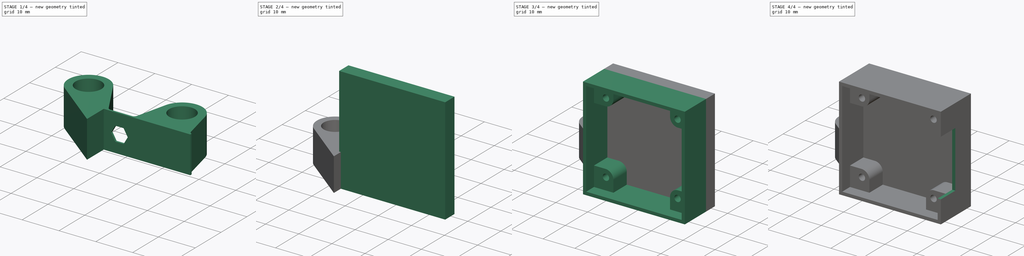
[diagram: build sequence overview — one tinted view per stage of 4, left to right]
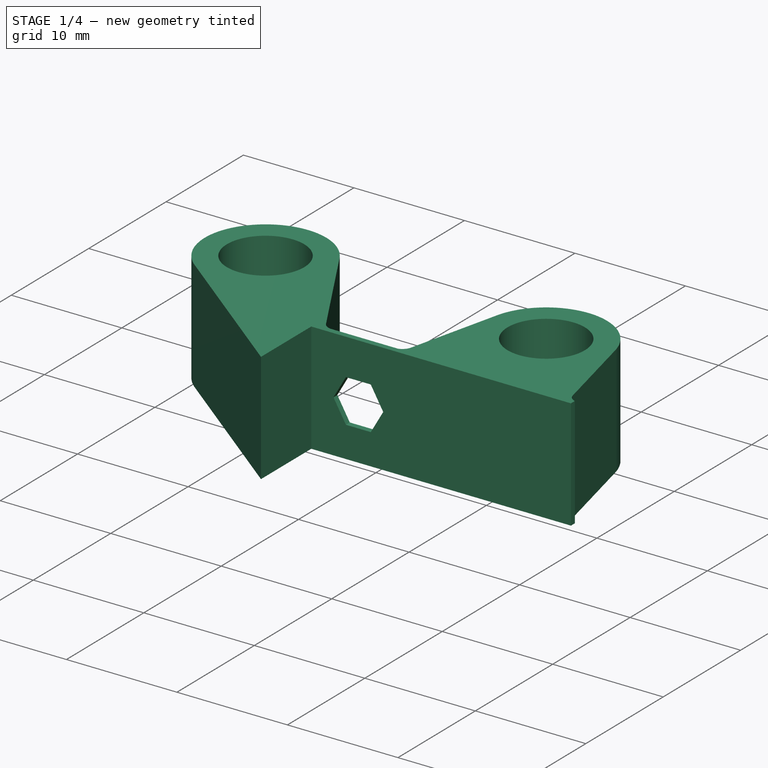
[diagram: stage 1 of 4 — iso view after this stage's code; geometry added in this stage tinted green]
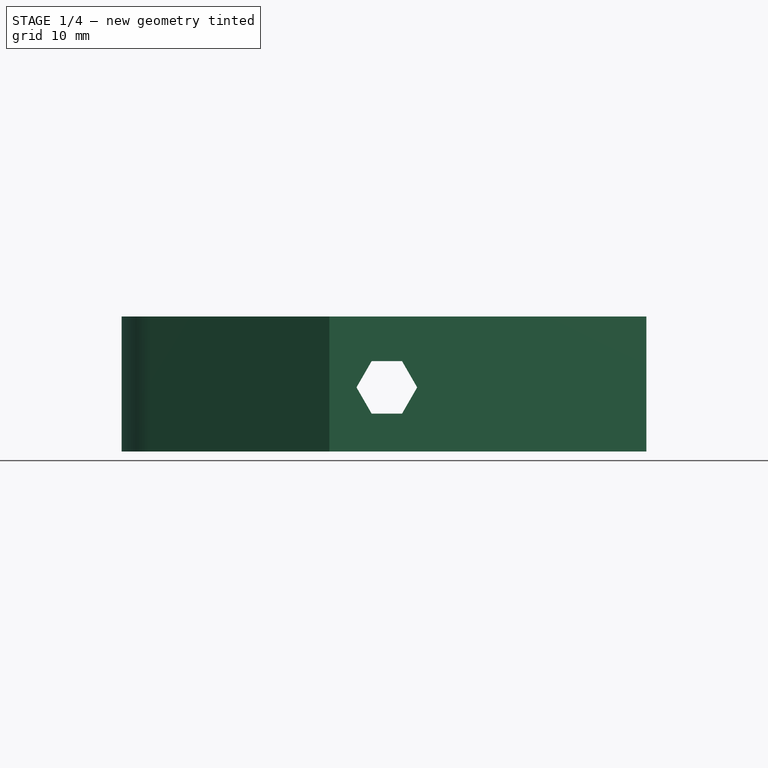
[diagram: stage 1 of 4 — front view after this stage's code; geometry added in this stage tinted green]
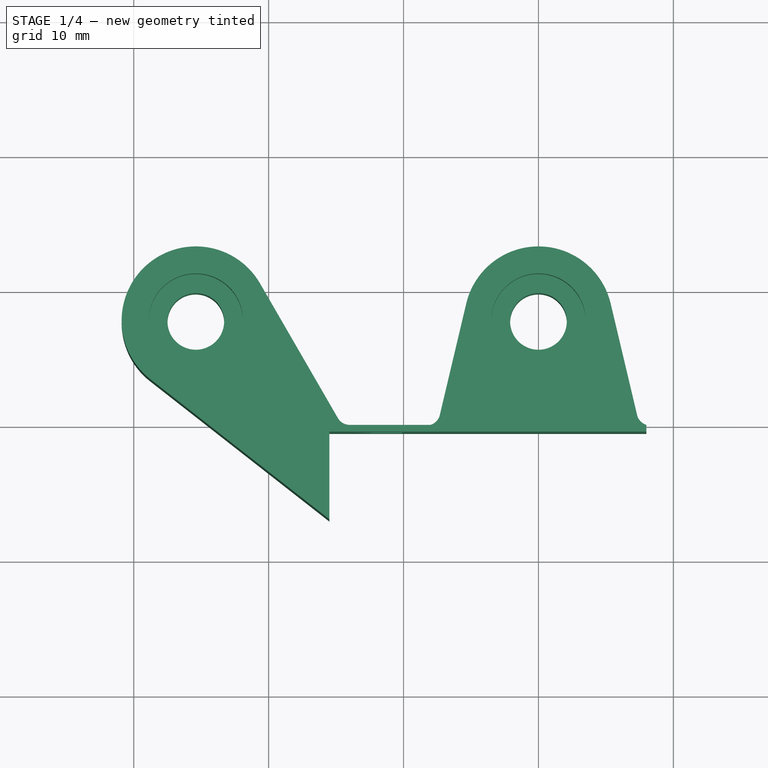
[diagram: stage 1 of 4 — top view after this stage's code; geometry added in this stage tinted green]
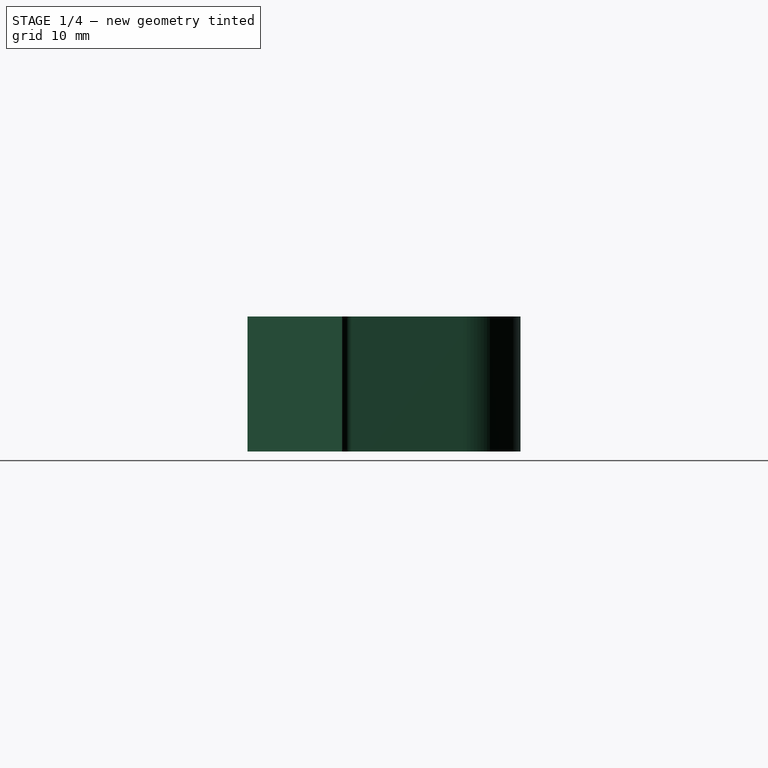
[diagram: stage 1 of 4 — right view after this stage's code; geometry added in this stage tinted green]
FCSTD DOCUMENT  (FreeCAD 0.21R30202 (Git))
Label: Case_Board_Camera
License: All rights reserved
LicenseURL: http://en.wikipedia.org/wiki/All_rights_reserved
objects: Sketcher::SketchObject×11, PartDesign::Pocket×7, PartDesign::Pad×4, PartDesign::Body×3
note: 36 computed .brp shape members not serialized (recipe doc carries the construction recipe); baked Part::Feature solids carry a one-line shape summary decoded from their .brp

FEATURE [PartDesign::Body] Body001  label="Center Mount"
  Group = -> [Sketch006,Pad002,Sketch007,Pocket004]
  Origin = -> Origin001
  Tip = -> Pocket004
FEATURE [Sketcher::SketchObject] Sketch008
  FullyConstrained = true
  MapMode = 5
  Support = -> [XY_Plane002]
  sketch-geometry (15):
    g0: Circle CenterX=-25.4 CenterY=7.73074 CenterZ=0 NormalX=0 NormalY=0 NormalZ=1 AngleXU=0 Radius=2.1
    g1: Circle CenterX=3e-16 CenterY=7.73074 CenterZ=0 NormalX=0 NormalY=0 NormalZ=1 AngleXU=0 Radius=2.1
    g2: LineSegment StartX=7.31364 StartY=0.727262 StartZ=0 EndX=5.35154 EndY=9 EndZ=0
    g3: LineSegment StartX=-5.35154 StartY=9 StartZ=0 EndX=-7.31364 EndY=0.727262 EndZ=0
    g4: ArcOfCircle CenterX=3e-16 CenterY=7.73074 CenterZ=0 NormalX=0 NormalY=0 NormalZ=1 AngleXU=0 Radius=5.5 StartAngle=0.232874 EndAngle=2.90872
    g5: ArcOfCircle CenterX=8.28665 CenterY=0.958036 CenterZ=0 NormalX=0 NormalY=0 NormalZ=1 AngleXU=0 Radius=1 StartAngle=3.37447 EndAngle=4.42166
    g6: ArcOfCircle CenterX=-8.28665 CenterY=0.958036 CenterZ=0 NormalX=0 NormalY=0 NormalZ=1 AngleXU=0 Radius=1 StartAngle=5.00311 EndAngle=6.05031
    g7: LineSegment StartX=-15.5 StartY=-7 StartZ=0 EndX=-28.7895 EndY=3.39928 EndZ=0
    g8: LineSegment StartX=-20.6385 StartY=10.4836 StartZ=0 EndX=-14.8663 EndY=0.499489 EndZ=0
    g9: ArcOfCircle CenterX=-14.0006 CenterY=1 CenterZ=0 NormalX=0 NormalY=0 NormalZ=1 AngleXU=0 Radius=1 StartAngle=3.66578 EndAngle=4.71298
    g10: ArcOfCircle CenterX=-25.4 CenterY=7.73074 CenterZ=0 NormalX=0 NormalY=0 NormalZ=1 AngleXU=0 Radius=5.5 StartAngle=0.524189 EndAngle=4.0484
    g11: LineSegment StartX=-14 StartY=0 StartZ=0 EndX=-8 EndY=0 EndZ=0
    g12: LineSegment StartX=8 StartY=0 StartZ=0 EndX=8 EndY=-0.5 EndZ=0
    g13: LineSegment StartX=8 StartY=-0.5 StartZ=0 EndX=-15.5 EndY=-0.5 EndZ=0
    g14: LineSegment StartX=-15.5 StartY=-0.5 StartZ=0 EndX=-15.5 EndY=-7 EndZ=0
  constraints (40):
    c: DistanceX(g0,g1) = 25.4
    c: Horizontal(g1,g0)
    c: Equal(g0,g1)
    c: Diameter(g0) = 4.2
    c: Tangent(g3,g4) = -1.5708
    c: Tangent(g2,g4) = -1.5708
    c: Diameter(g4) = 11
    c: Symmetric(g2,g3,g-2)
    c: Tangent(g2,g5) = 1.5708
    c: Tangent(g3,g6) = 1.5708
    c: PointOnObject(g5,g-1)
    c: PointOnObject(g6,g-1)
    c: Equal(g5,g6)
    c: Diameter(g5) = 2
    c: Angle(g6) = 1.0472
    c: Angle(g5) = 1.0472
    c: DistanceY(g-1,g2) = 9
    c: DistanceX(g6,g5) = 16
    c: Coincident(g1,g4)
    c: Tangent(g8,g9) = -1.5708
    c: Angle(g9) = 1.0472
    c: PointOnObject(g9,g-1)
    c: Diameter(g10) = 11
    c: Coincident(g10,g0)
    c: Tangent(g10,g8) = 1.5708
    c: Tangent(g10,g7) = 1.5708
    c: DistanceY(g7,g9) = 7
    c: DistanceX(g9,g6) = 6
    c: DistanceX(g7,g9) = 1.5
    c: Diameter(g9) = 2
    c: Coincident(g11,g9)
    c: Coincident(g11,g6)
    c: Coincident(g12,g5)
    c: Coincident(g13,g12)
    c: Horizontal(g13)
    c: Coincident(g14,g13)
    c: Coincident(g14,g7)
    c: Vertical(g12)
    c: DistanceY(g12,g5) = 0.5
    c: Vertical(g14)
FEATURE [PartDesign::Pad] Pad003
  Direction = (0,0,1)
  Length = 10
  Length2 = 10
  Profile = -> Sketch008
  ReferenceAxis = -> Sketch008 [N_Axis]
  Type = 0
FEATURE [Sketcher::SketchObject] Sketch009
  FullyConstrained = true
  MapMode = 5
  Placement = pos=(0,0,0) rot=(0,0.707107,0.707107;3.14159rad)
  Support = -> [Pad003]
  sketch-geometry (7):
    g0: LineSegment StartX=12.365 StartY=2.80144 StartZ=0 EndX=13.49 EndY=4.75 EndZ=0
    g1: LineSegment StartX=13.49 StartY=4.75 StartZ=0 EndX=12.365 EndY=6.69856 EndZ=0
    g2: LineSegment StartX=12.365 StartY=6.69856 StartZ=0 EndX=10.115 EndY=6.69856 EndZ=0
    g3: LineSegment StartX=10.115 StartY=6.69856 StartZ=0 EndX=8.99 EndY=4.75 EndZ=0
    g4: LineSegment StartX=8.99 StartY=4.75 StartZ=0 EndX=10.115 EndY=2.80144 EndZ=0
    g5: LineSegment StartX=10.115 StartY=2.80144 StartZ=0 EndX=12.365 EndY=2.80144 EndZ=0
    g6: Circle CenterX=11.24 CenterY=4.75 CenterZ=0 NormalX=0 NormalY=0 NormalZ=1 AngleXU=0 Radius=2.25
  constraints (17):
    c: Coincident(g0,g1)
    c: Coincident(g1,g2)
    c: Coincident(g2,g3)
    c: Coincident(g3,g4)
    c: Coincident(g4,g5)
    c: Coincident(g5,g0)
    c: Equal(g0, g1-g5) x5
    c: PointOnObject(g0,g6)
    c: PointOnObject(g1,g6)
    c: PointOnObject(g2,g6)
    c: PointOnObject(g3,g6)
    c: PointOnObject(g4,g6)
    c: PointOnObject(g5,g6)
    c: Horizontal(g2)
    c: Distance(g1,g4) = 4.5
    c: DistanceY(g-1,g6) = 4.75
    c: DistanceX(g-1,g6) = 11.24
FEATURE [PartDesign::Pocket] Pocket005
  BaseFeature = -> Pad003
  Direction = (0,-1,2e-16)
  Length = 3
  Length2 = 5
  Profile = -> Sketch009
  ReferenceAxis = -> Sketch009 [N_Axis]
  Type = 0
FEATURE [Sketcher::SketchObject] Sketch010
  ExternalGeometry = -> [Pocket005]
  FullyConstrained = true
  MapMode = 5
  Placement = pos=(0,0,10) rot=(0,0,1;0rad)
  Support = -> [Pocket005]
  sketch-geometry (2):
    g0: Circle CenterX=-25.4 CenterY=7.73074 CenterZ=0 NormalX=0 NormalY=0 NormalZ=1 AngleXU=0 Radius=3.5
    g1: Circle CenterX=0 CenterY=7.73074 CenterZ=0 NormalX=0 NormalY=0 NormalZ=1 AngleXU=0 Radius=3.5
  constraints (4):
    c: Coincident(g0,g-3)
    c: Coincident(g1,g-4)
    c: Diameter(g1) = 7
    c: Diameter(g0) = 7
FEATURE [PartDesign::Pocket] Pocket006
  BaseFeature = -> Pocket005
  Direction = (0,0,-1)
  Length = 3.5
  Length2 = 5
  Profile = -> Sketch010
  ReferenceAxis = -> Sketch010 [N_Axis]
  Type = 0
FEATURE [PartDesign::Body] Body002  label="Off-Center"
  Group = -> [Sketch008,Pad003,Sketch009,Pocket005,Sketch010,Pocket006]
  Origin = -> Origin002
  Tip = -> Pocket006
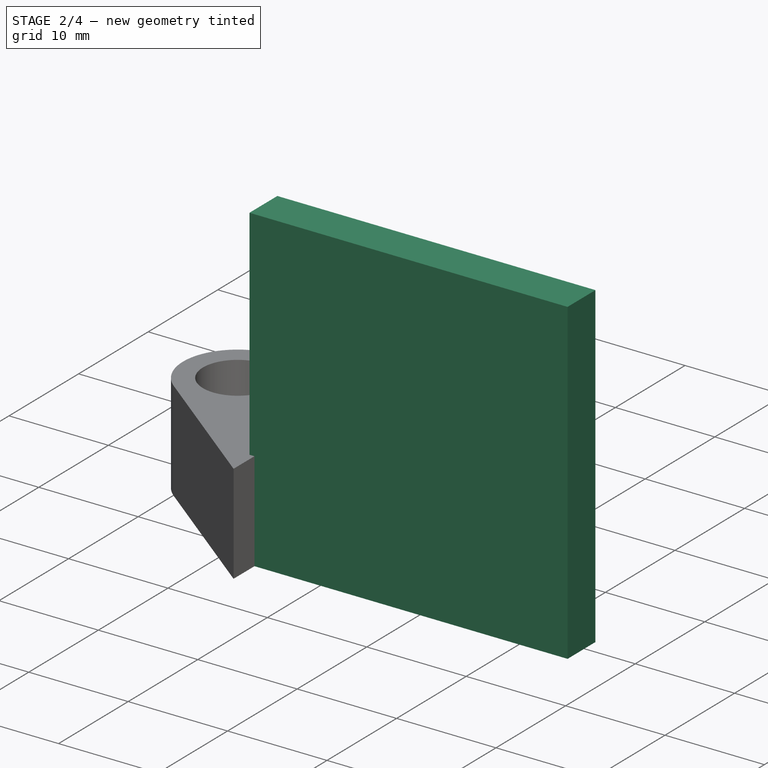
[diagram: stage 2 of 4 — iso view after this stage's code; geometry added in this stage tinted green]
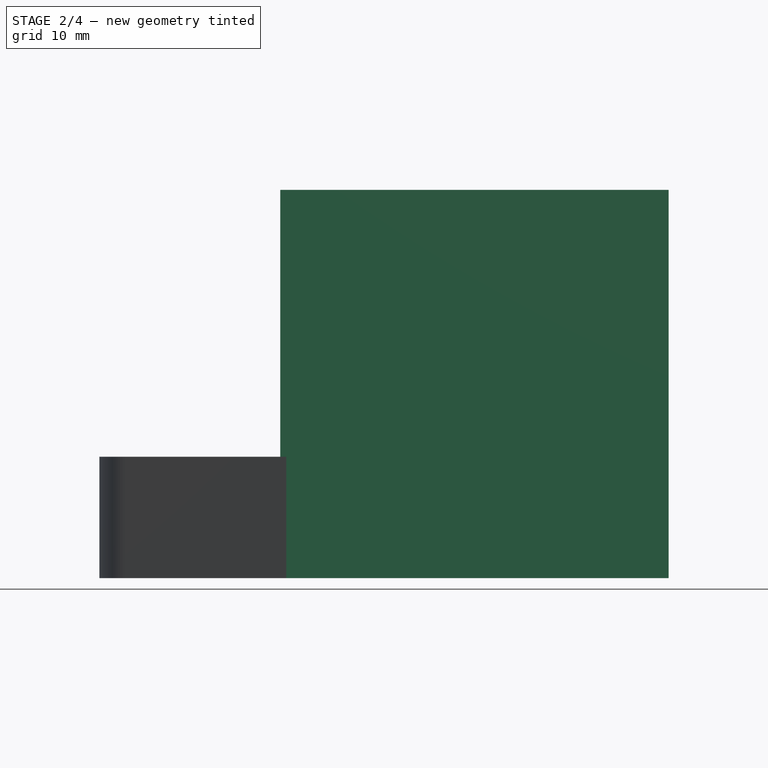
[diagram: stage 2 of 4 — front view after this stage's code; geometry added in this stage tinted green]
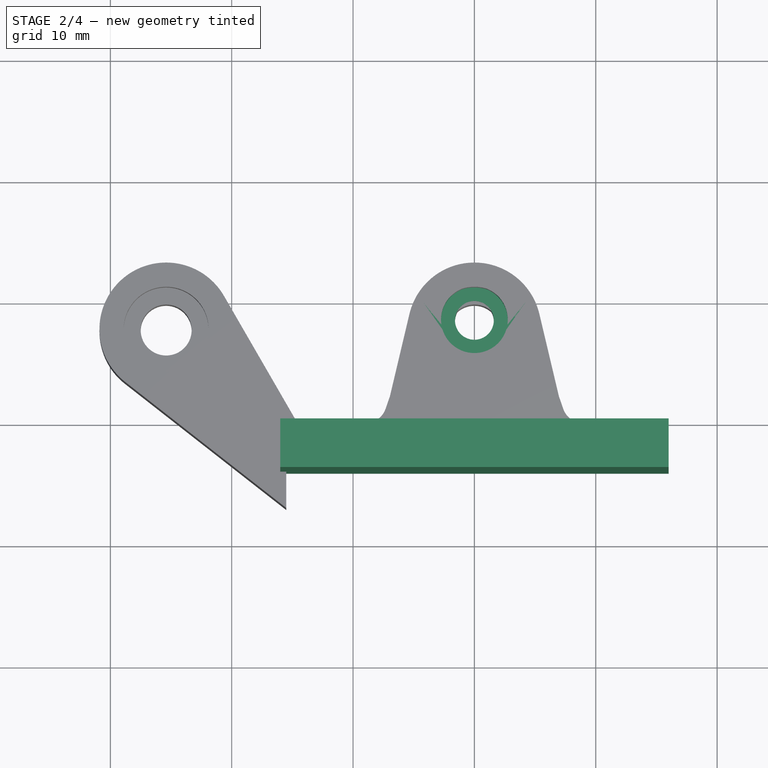
[diagram: stage 2 of 4 — top view after this stage's code; geometry added in this stage tinted green]
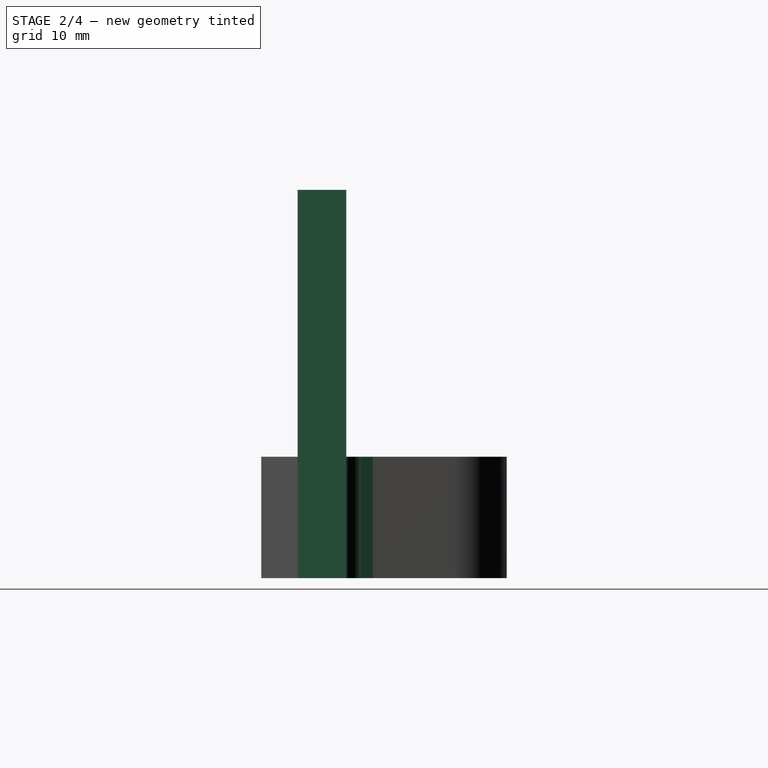
[diagram: stage 2 of 4 — right view after this stage's code; geometry added in this stage tinted green]
FEATURE [Sketcher::SketchObject] Sketch
  FullyConstrained = true
  MapMode = 5
  Placement = pos=(0,0,0) rot=(1,0,0;1.5708rad)
  Support = -> [XZ_Plane]
  sketch-geometry (4):
    g0: LineSegment StartX=-16 StartY=32 StartZ=0 EndX=16 EndY=32 EndZ=0
    g1: LineSegment StartX=16 StartY=32 StartZ=0 EndX=16 EndY=0 EndZ=0
    g2: LineSegment StartX=16 StartY=0 StartZ=0 EndX=-16 EndY=0 EndZ=0
    g3: LineSegment StartX=-16 StartY=0 StartZ=0 EndX=-16 EndY=32 EndZ=0
  constraints (11):
    c: Coincident(g0,g1)
    c: Coincident(g1,g2)
    c: Coincident(g2,g3)
    c: Coincident(g3,g0)
    c: Horizontal(g2)
    c: Vertical(g1)
    c: Vertical(g3)
    c: PointOnObject(g1,g-1)
    c: Equal(g0,g3)
    c: Symmetric(g0,g0,g-2)
    c: DistanceY(g3,g3) = 32
FEATURE [PartDesign::Pad] Pad  label="Back plate"
  Direction = (0,-1,2e-16)
  Length = 4
  Length2 = 10
  Placement = pos=(0,0,0) rot=(1,0,0;1.5708rad)
  Profile = -> Sketch
  ReferenceAxis = -> Sketch [N_Axis]
  Type = 0
FEATURE [PartDesign::Body] Body  label="Case"
  Group = -> [Sketch,Pad,Sketch001,Pad001,Sketch002,Pocket,Sketch003,Pocket001,Sketch004,Pocket002,Sketch005,Pocket003]
  Origin = -> Origin
  Tip = -> Pocket003
FEATURE [Sketcher::SketchObject] Sketch006
  FullyConstrained = true
  MapMode = 5
  Support = -> [XY_Plane001]
  sketch-geometry (7):
    g0: LineSegment StartX=-7.32127 StartY=1.17463 StartZ=0 EndX=-4.25 EndY=10 EndZ=0
    g1: LineSegment StartX=4.25 StartY=10 StartZ=0 EndX=7.32127 EndY=1.17463 EndZ=0
    g2: ArcOfCircle CenterX=3e-16 CenterY=8.52098 CenterZ=0 NormalX=0 NormalY=0 NormalZ=1 AngleXU=0 Radius=4.5 StartAngle=0.334896 EndAngle=2.8067
    g3: ArcOfCircle CenterX=-8.97405 CenterY=1.74981 CenterZ=0 NormalX=0 NormalY=0 NormalZ=1 AngleXU=0 Radius=1.75 StartAngle=4.69756 EndAngle=5.94829
    g4: ArcOfCircle CenterX=8.97405 CenterY=1.74981 CenterZ=0 NormalX=0 NormalY=0 NormalZ=1 AngleXU=0 Radius=1.75 StartAngle=3.47649 EndAngle=4.72722
    g5: LineSegment StartX=-9 StartY=7.13e-14 StartZ=0 EndX=9 EndY=7.13e-14 EndZ=0
    g6: Circle CenterX=3e-16 CenterY=8.52098 CenterZ=0 NormalX=0 NormalY=0 NormalZ=1 AngleXU=0 Radius=1.6
  constraints (17):
    c: Tangent(g0,g2) = 1.5708
    c: Tangent(g1,g2) = 1.5708
    c: Symmetric(g1,g0,g-2)
    c: DistanceY(g-1,g1) = 10
    c: Tangent(g0,g3) = -1.5708
    c: Tangent(g1,g4) = -1.5708
    c: Coincident(g5,g4)
    c: Coincident(g5,g3)
    c: PointOnObject(g3,g-1)
    c: Equal(g4,g3)
    c: DistanceX(g3,g4) = 18
    c: Symmetric(g4,g3,g-2)
    c: Diameter(g2) = 9
    c: Coincident(g6,g2)
    c: Diameter(g6) = 3.2
    c: Distance(g0,g1) = 8.5
    c: Diameter(g4) = 3.5
FEATURE [PartDesign::Pad] Pad002
  Direction = (0,0,1)
  Length = 10
  Length2 = 10
  Profile = -> Sketch006
  ReferenceAxis = -> Sketch006 [N_Axis]
  Type = 0
FEATURE [Sketcher::SketchObject] Sketch007
  ExternalGeometry = -> [Pad002]
  FullyConstrained = true
  MapMode = 5
  Placement = pos=(0,0,10) rot=(0,0,1;0rad)
  Support = -> [Pad002]
  sketch-geometry (1):
    g0: Circle CenterX=0 CenterY=8.52098 CenterZ=0 NormalX=0 NormalY=0 NormalZ=1 AngleXU=0 Radius=2.75
  constraints (2):
    c: Diameter(g0) = 5.5
    c: Coincident(g-3,g0)
FEATURE [PartDesign::Pocket] Pocket004
  BaseFeature = -> Pad002
  Direction = (0,0,-1)
  Length = 3
  Length2 = 5
  Profile = -> Sketch007
  ReferenceAxis = -> Sketch007 [N_Axis]
  Type = 0
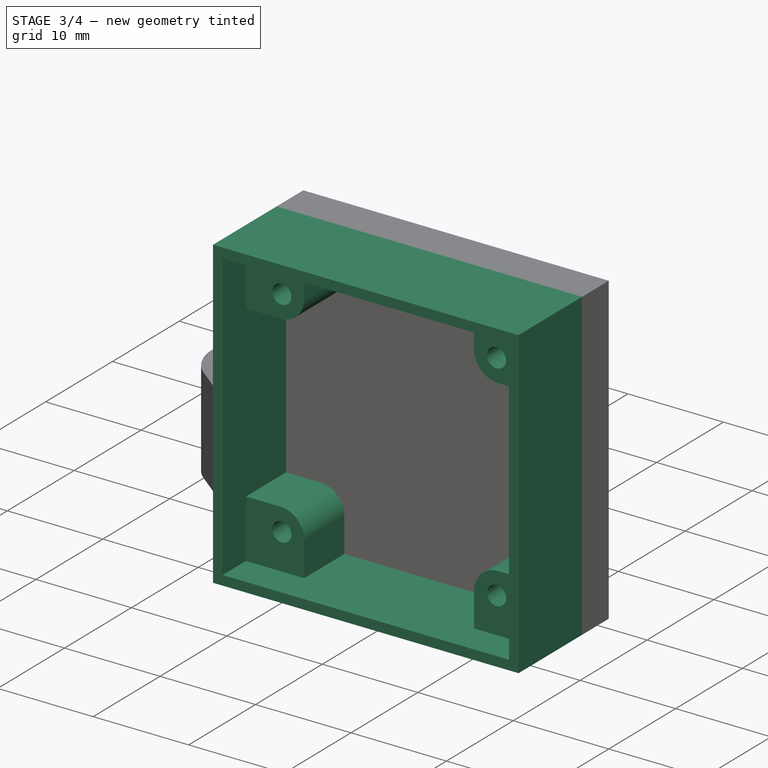
[diagram: stage 3 of 4 — iso view after this stage's code; geometry added in this stage tinted green]
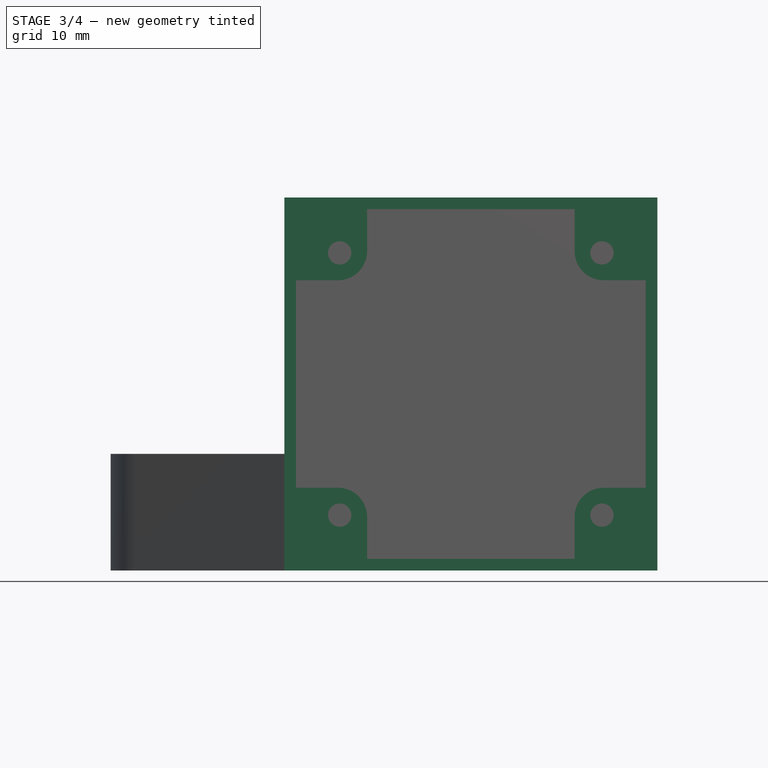
[diagram: stage 3 of 4 — front view after this stage's code; geometry added in this stage tinted green]
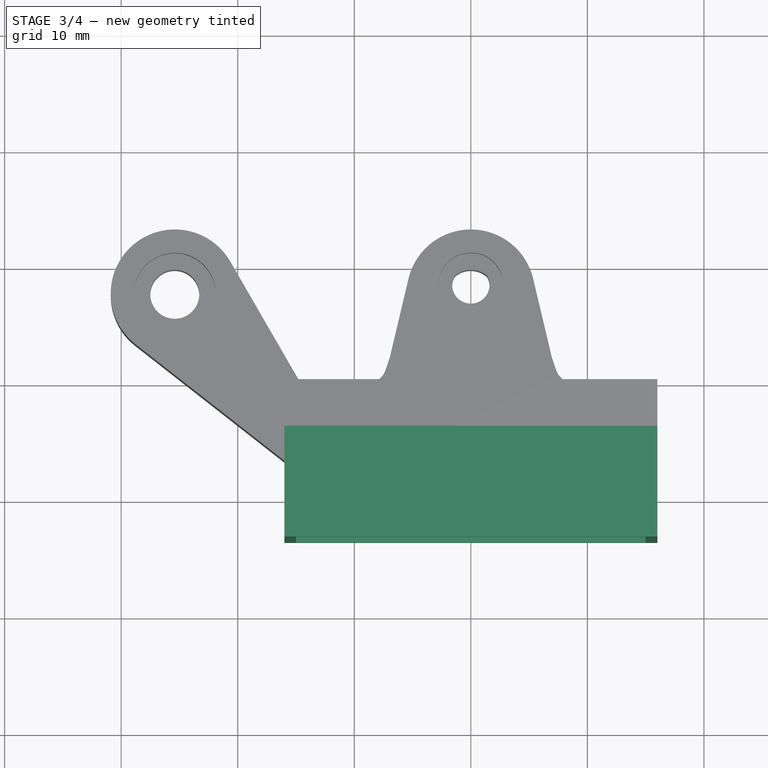
[diagram: stage 3 of 4 — top view after this stage's code; geometry added in this stage tinted green]
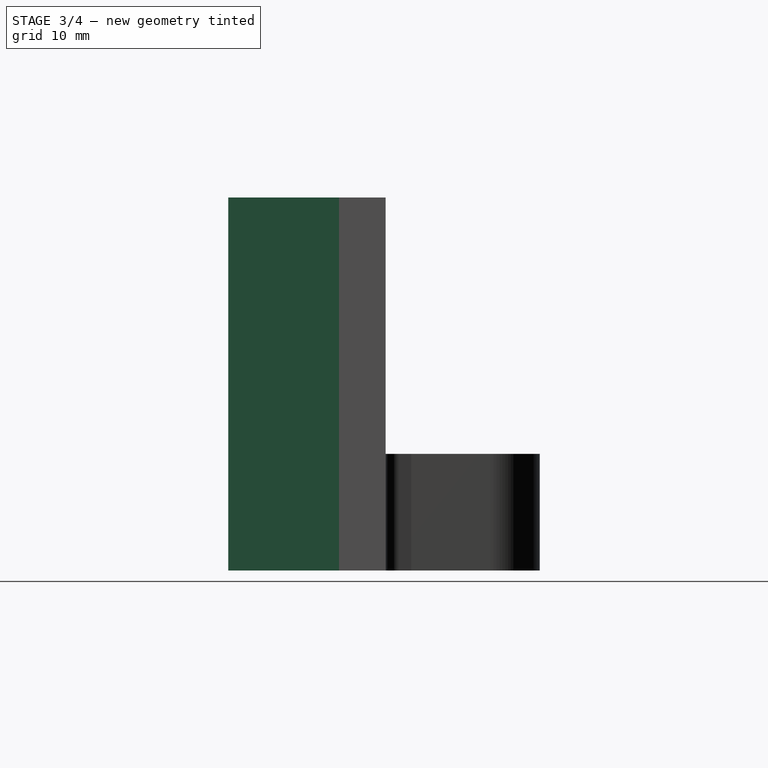
[diagram: stage 3 of 4 — right view after this stage's code; geometry added in this stage tinted green]
FEATURE [Sketcher::SketchObject] Sketch001
  ExternalGeometry = -> [Pad]
  FullyConstrained = false
  MapMode = 5
  Placement = pos=(0,-4,9e-16) rot=(1,0,0;1.5708rad)
  Support = -> [Pad]
  sketch-geometry (26):
    g0: LineSegment StartX=-16 StartY=32 StartZ=0 EndX=16 EndY=32 EndZ=0
    g1: LineSegment StartX=16 StartY=32 StartZ=0 EndX=16 EndY=0 EndZ=0
    g2: LineSegment StartX=16 StartY=0 StartZ=0 EndX=-16 EndY=0 EndZ=0
    g3: LineSegment StartX=-16 StartY=0 StartZ=0 EndX=-16 EndY=32 EndZ=0
    g4: GeomPoint X=-15 Y=31 Z=0
    g5: LineSegment StartX=-15 StartY=24.9 StartZ=0 EndX=-11.4 EndY=24.9 EndZ=0
    g6: LineSegment StartX=-8.9 StartY=27.4 StartZ=0 EndX=-8.9 EndY=31 EndZ=0
    g7: ArcOfCircle CenterX=-11.4 CenterY=27.4 CenterZ=0 NormalX=0 NormalY=0 NormalZ=1 AngleXU=0 Radius=2.5 StartAngle=4.71239 EndAngle=6.28319
    g8: LineSegment StartX=8.9 StartY=31 StartZ=0 EndX=8.9 EndY=27.4 EndZ=0
    g9: LineSegment StartX=11.4 StartY=24.9 StartZ=0 EndX=15 EndY=24.9 EndZ=0
    g10: ArcOfCircle CenterX=11.4 CenterY=27.4 CenterZ=0 NormalX=0 NormalY=0 NormalZ=1 AngleXU=0 Radius=2.5 StartAngle=3.14159 EndAngle=4.71239
    g11: LineSegment StartX=-8.9 StartY=31 StartZ=0 EndX=8.9 EndY=31 EndZ=0
    g12: LineSegment StartX=8.9 StartY=1 StartZ=0 EndX=8.9 EndY=4.6 EndZ=0
    g13: LineSegment StartX=11.4 StartY=7.1 StartZ=0 EndX=15 EndY=7.1 EndZ=0
    g14: ArcOfCircle CenterX=11.4 CenterY=4.6 CenterZ=0 NormalX=0 NormalY=0 NormalZ=1 AngleXU=0 Radius=2.5 StartAngle=1.5708 EndAngle=3.14159
    g15: LineSegment StartX=15 StartY=24.9 StartZ=0 EndX=15 EndY=7.1 EndZ=0
    g16: LineSegment StartX=-15 StartY=7.1 StartZ=0 EndX=-11.4 EndY=7.1 EndZ=0
    g17: LineSegment StartX=-8.9 StartY=4.6 StartZ=0 EndX=-8.9 EndY=1 EndZ=0
    g18: ArcOfCircle CenterX=-11.4 CenterY=4.6 CenterZ=0 NormalX=0 NormalY=0 NormalZ=1 AngleXU=0 Radius=2.5 StartAngle=1e-16 EndAngle=1.5708
    g19: LineSegment StartX=8.9 StartY=1 StartZ=0 EndX=-8.9 EndY=1 EndZ=0
    g20: LineSegment StartX=-15 StartY=7.1 StartZ=0 EndX=-15 EndY=24.9 EndZ=0
    g21: Circle CenterX=-11.25 CenterY=4.75 CenterZ=0 NormalX=0 NormalY=0 NormalZ=1 AngleXU=0 Radius=1
    g22: Circle CenterX=11.25 CenterY=4.75 CenterZ=0 NormalX=0 NormalY=0 NormalZ=1 AngleXU=0 Radius=1
    g23: Circle CenterX=11.25 CenterY=27.25 CenterZ=0 NormalX=0 NormalY=0 NormalZ=1 AngleXU=0 Radius=1
    g24: Circle CenterX=-11.25 CenterY=27.25 CenterZ=0 NormalX=0 NormalY=0 NormalZ=1 AngleXU=0 Radius=1
    g25: LineSegment StartX=-16 StartY=0 StartZ=0 EndX=16 EndY=32 EndZ=0
  constraints (66):
    c: Coincident(g0,g1)
    c: Coincident(g1,g2)
    c: Coincident(g2,g3)
    c: Coincident(g3,g0)
    c: Horizontal(g0)
    c: Horizontal(g2)
    c: Vertical(g1)
    c: Vertical(g3)
    c: Coincident(g0,g-4)
    c: Coincident(g1,g-6)
    c: Horizontal(g5)
    c: Vertical(g6)
    c: DistanceX(g0,g6) = 7.1
    c: DistanceY(g5,g0) = 7.1
    c: Tangent(g6,g7) = -1.5708
    c: Tangent(g5,g7) = -1.5708
    c: Diameter(g7) = 5
    c: Coincident(g20,g5)
    c: Vertical(g8)
    c: Horizontal(g9)
    c: Tangent(g8,g10) = -1.5708
    c: Tangent(g9,g10) = -1.5708
    c: DistanceX(g8,g0) = 7.1
    c: DistanceY(g9,g0) = 7.1
    c: Diameter(g10) = 5
    c: Horizontal(g11)
    c: Coincident(g11,g8)
    c: Coincident(g6,g11)
    c: DistanceY(g8,g0) = 1
    c: Vertical(g12)
    c: Horizontal(g13)
    c: Tangent(g13,g14) = 1.5708
    c: Tangent(g12,g14) = 1.5708
    c: Vertical(g15)
    c: DistanceY(g1,g13) = 7.1
    c: DistanceX(g12,g1) = 7.1
    c: Diameter(g14) = 5
    c: DistanceX(g13,g1) = 1
    c: Coincident(g12,g19)
    c: Coincident(g15,g13)
    c: Coincident(g9,g15)
    c: Horizontal(g16)
    c: Vertical(g17)
    c: Tangent(g16,g18) = 1.5708
    c: Tangent(g17,g18) = 1.5708
    c: Horizontal(g19)
    c: Vertical(g20)
    c: Coincident(g19,g17)
    c: DistanceX(g2,g17) = 7.1
    c: Coincident(g16,g20)
    c: DistanceY(g2,g16) = 7.1
    c: Diameter(g18) = 5
    c: DistanceY(g2,g17) = 1
    c: DistanceX(g2,g16) = 1
    c: Equal(g24,g23)
    c: Equal(g23,g22)
    c: Equal(g22,g21)
    c: Diameter(g22) = 2
    c: Symmetric(g22,g21,g-2)
    c: DistanceX(g21,g22) = 22.5
    c: Symmetric(g24,g23,g-2)
    c: DistanceX(g24,g23) = 22.5
    c: DistanceY(g21,g24) = 22.5
    c: Coincident(g25,g2)
    c: Coincident(g25,g0)
    c: PointOnObject(g23,g25)
FEATURE [PartDesign::Pad] Pad001  label="Inner stuff"
  BaseFeature = -> Pad
  Direction = (0,-1,2e-16)
  Length = 9.5
  Length2 = 10
  Placement = pos=(0,0,0) rot=(1,0,0;1.5708rad)
  Profile = -> Sketch001
  ReferenceAxis = -> Sketch001 [N_Axis]
  Type = 0
FEATURE [Sketcher::SketchObject] Sketch002
  ExternalGeometry = -> [Pad001]
  FullyConstrained = true
  MapMode = 5
  Placement = pos=(0,-13.5,3e-15) rot=(1,0,0;1.5708rad)
  Support = -> [Pad001]
  sketch-geometry (4):
    g0: LineSegment StartX=-15 StartY=31 StartZ=0 EndX=15 EndY=31 EndZ=0
    g1: LineSegment StartX=15 StartY=31 StartZ=0 EndX=15 EndY=1 EndZ=0
    g2: LineSegment StartX=15 StartY=1 StartZ=0 EndX=-15 EndY=1 EndZ=0
    g3: LineSegment StartX=-15 StartY=1 StartZ=0 EndX=-15 EndY=31 EndZ=0
  constraints (12):
    c: Coincident(g0,g1)
    c: Coincident(g1,g2)
    c: Coincident(g2,g3)
    c: Coincident(g3,g0)
    c: Horizontal(g0)
    c: Horizontal(g2)
    c: Vertical(g1)
    c: Vertical(g3)
    c: PointOnObject(g-4,g1)
    c: PointOnObject(g-6,g0)
    c: PointOnObject(g-3,g3)
    c: PointOnObject(g-5,g2)
FEATURE [PartDesign::Pocket] Pocket  label="board cutout"
  BaseFeature = -> Pad001
  Direction = (0,1,-2e-16)
  Length = 3.5
  Length2 = 5
  Placement = pos=(0,0,0) rot=(1,0,0;1.5708rad)
  Profile = -> Sketch002
  ReferenceAxis = -> Sketch002 [N_Axis]
  Type = 0
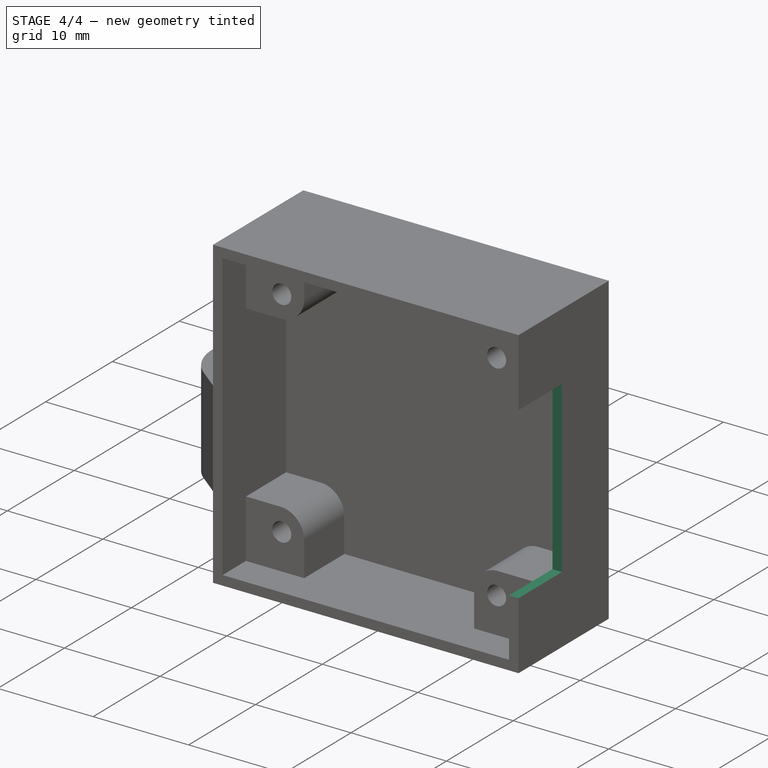
[diagram: stage 4 of 4 — iso view after this stage's code; geometry added in this stage tinted green]
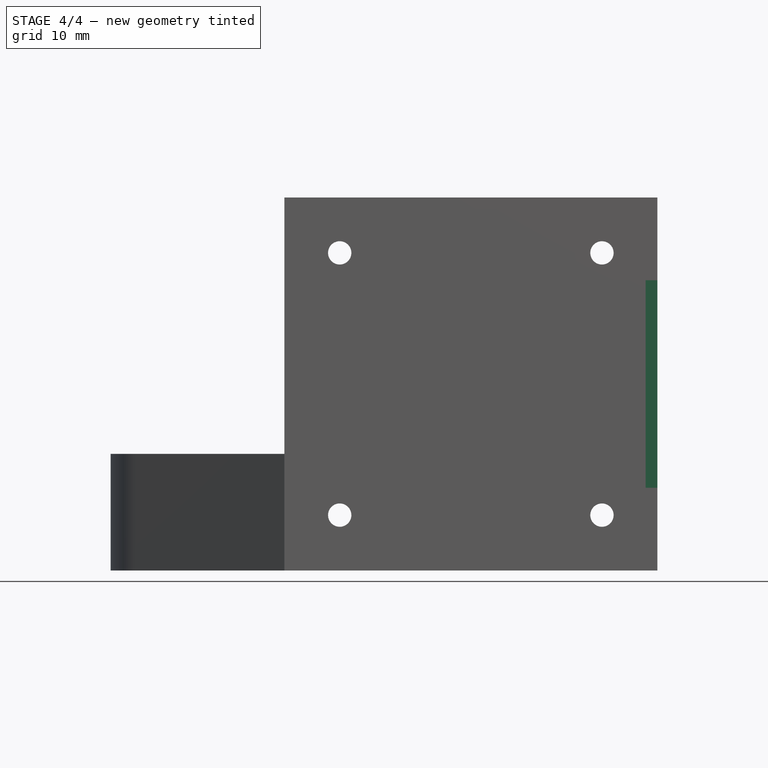
[diagram: stage 4 of 4 — front view after this stage's code; geometry added in this stage tinted green]
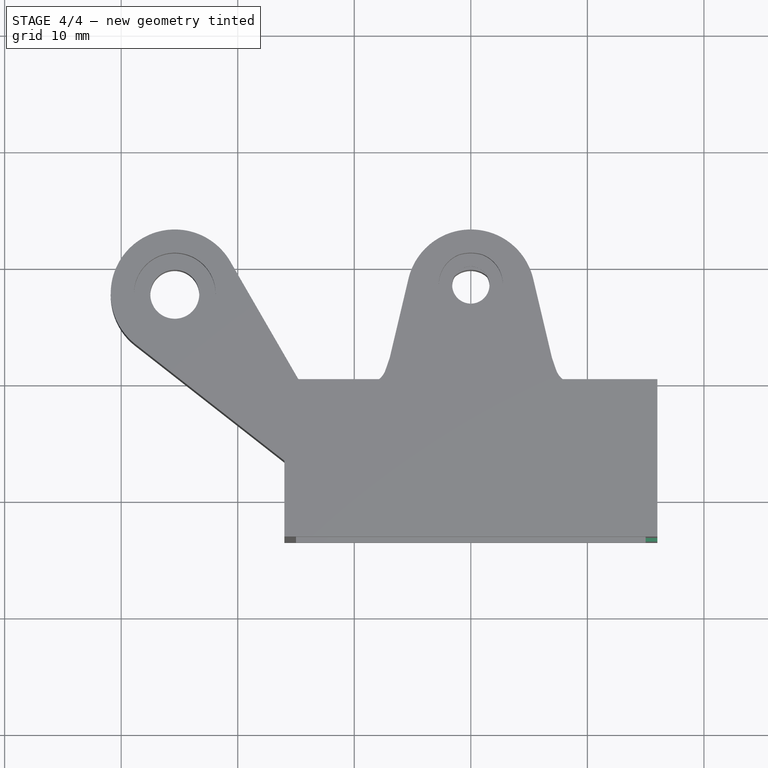
[diagram: stage 4 of 4 — top view after this stage's code; geometry added in this stage tinted green]
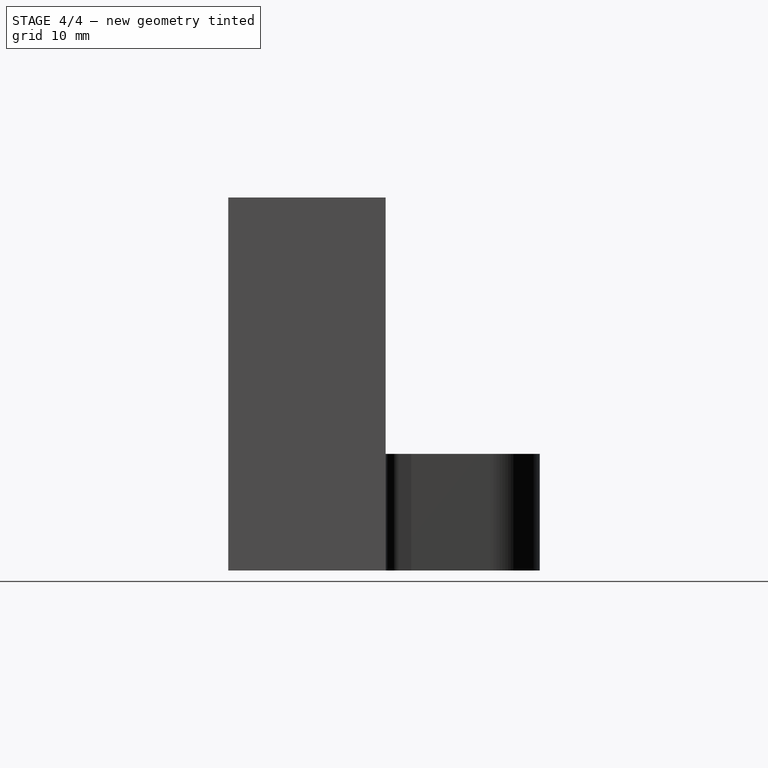
[diagram: stage 4 of 4 — right view after this stage's code; geometry added in this stage tinted green]
FEATURE [Sketcher::SketchObject] Sketch003
  ExternalGeometry = -> [Pocket]
  FullyConstrained = true
  MapMode = 5
  Placement = pos=(0,-13.5,3e-15) rot=(1,0,0;1.5708rad)
  Support = -> [Pocket]
  sketch-geometry (4):
    g0: LineSegment StartX=15 StartY=24.9 StartZ=0 EndX=16 EndY=24.9 EndZ=0
    g1: LineSegment StartX=16 StartY=24.9 StartZ=0 EndX=16 EndY=7.1 EndZ=0
    g2: LineSegment StartX=16 StartY=7.1 StartZ=0 EndX=15 EndY=7.1 EndZ=0
    g3: LineSegment StartX=15 StartY=7.1 StartZ=0 EndX=15 EndY=24.9 EndZ=0
  constraints (10):
    c: Coincident(g0,g1)
    c: Coincident(g1,g2)
    c: Coincident(g2,g3)
    c: Coincident(g3,g0)
    c: Horizontal(g0)
    c: Horizontal(g2)
    c: Vertical(g1)
    c: Coincident(g0,g-4)
    c: PointOnObject(g1,g-3)
    c: Coincident(g2,g-4)
FEATURE [PartDesign::Pocket] Pocket001  label="USB connector"
  BaseFeature = -> Pocket
  Direction = (0,1,-2e-16)
  Length = 6.5
  Length2 = 5
  Placement = pos=(0,0,0) rot=(1,0,0;1.5708rad)
  Profile = -> Sketch003
  ReferenceAxis = -> Sketch003 [N_Axis]
  Type = 0
FEATURE [Sketcher::SketchObject] Sketch004
  ExternalGeometry = -> [Pocket001]
  FullyConstrained = true
  MapMode = 5
  Placement = pos=(0,-4,9e-16) rot=(1,0,0;1.5708rad)
  Support = -> [Pocket001]
  sketch-geometry (4):
    g0: Circle CenterX=-11.25 CenterY=27.25 CenterZ=0 NormalX=0 NormalY=0 NormalZ=1 AngleXU=0 Radius=1
    g1: Circle CenterX=11.25 CenterY=27.25 CenterZ=0 NormalX=0 NormalY=0 NormalZ=1 AngleXU=0 Radius=1
    g2: Circle CenterX=11.25 CenterY=4.75 CenterZ=0 NormalX=0 NormalY=0 NormalZ=1 AngleXU=0 Radius=1
    g3: Circle CenterX=-11.25 CenterY=4.75 CenterZ=0 NormalX=0 NormalY=0 NormalZ=1 AngleXU=0 Radius=1
  constraints (8):
    c: Coincident(g2,g-5)
    c: Coincident(g3,g-6)
    c: Coincident(g0,g-3)
    c: Coincident(g1,g-4)
    c: Equal(g1,g0)
    c: Equal(g0,g2)
    c: Equal(g2,g3)
    c: Diameter(g0) = 2
FEATURE [PartDesign::Pocket] Pocket002  label="Drill holes"
  BaseFeature = -> Pocket001
  Direction = (0,1,-2e-16)
  Length = 15
  Length2 = 5
  Midplane = true
  Placement = pos=(0,0,0) rot=(1,0,0;1.5708rad)
  Profile = -> Sketch004
  ReferenceAxis = -> Sketch004 [N_Axis]
  Type = 1
FEATURE [Sketcher::SketchObject] Sketch005
  ExternalGeometry = -> [Pocket002]
  FullyConstrained = true
  MapMode = 5
  Placement = pos=(0,0,0) rot=(-1,0,0;1.5708rad)
  Support = -> [Pocket002]
  sketch-geometry (28):
    g0: LineSegment StartX=-10.125 StartY=-6.69856 StartZ=0 EndX=-9 EndY=-4.75 EndZ=0
    g1: LineSegment StartX=-9 StartY=-4.75 StartZ=0 EndX=-10.125 EndY=-2.80144 EndZ=0
    g2: LineSegment StartX=-10.125 StartY=-2.80144 StartZ=0 EndX=-12.375 EndY=-2.80144 EndZ=0
    g3: LineSegment StartX=-12.375 StartY=-2.80144 StartZ=0 EndX=-13.5 EndY=-4.75 EndZ=0
    g4: LineSegment StartX=-13.5 StartY=-4.75 StartZ=0 EndX=-12.375 EndY=-6.69856 EndZ=0
    g5: LineSegment StartX=-12.375 StartY=-6.69856 StartZ=0 EndX=-10.125 EndY=-6.69856 EndZ=0
    g6: Circle CenterX=-11.25 CenterY=-4.75 CenterZ=0 NormalX=0 NormalY=0 NormalZ=1 AngleXU=0 Radius=2.25
    g7: LineSegment StartX=12.375 StartY=-6.69856 StartZ=0 EndX=13.5 EndY=-4.75 EndZ=0
    g8: LineSegment StartX=13.5 StartY=-4.75 StartZ=0 EndX=12.375 EndY=-2.80144 EndZ=0
    g9: LineSegment StartX=12.375 StartY=-2.80144 StartZ=0 EndX=10.125 EndY=-2.80144 EndZ=0
    g10: LineSegment StartX=10.125 StartY=-2.80144 StartZ=0 EndX=9 EndY=-4.75 EndZ=0
    g11: LineSegment StartX=9 StartY=-4.75 StartZ=0 EndX=10.125 EndY=-6.69856 EndZ=0
    g12: LineSegment StartX=10.125 StartY=-6.69856 StartZ=0 EndX=12.375 EndY=-6.69856 EndZ=0
    g13: Circle CenterX=11.25 CenterY=-4.75 CenterZ=0 NormalX=0 NormalY=0 NormalZ=1 AngleXU=0 Radius=2.25
    g14: LineSegment StartX=12.375 StartY=-29.1986 StartZ=0 EndX=13.5 EndY=-27.25 EndZ=0
    g15: LineSegment StartX=13.5 StartY=-27.25 StartZ=0 EndX=12.375 EndY=-25.3014 EndZ=0
    g16: LineSegment StartX=12.375 StartY=-25.3014 StartZ=0 EndX=10.125 EndY=-25.3014 EndZ=0
    g17: LineSegment StartX=10.125 StartY=-25.3014 StartZ=0 EndX=9 EndY=-27.25 EndZ=0
    g18: LineSegment StartX=9 StartY=-27.25 StartZ=0 EndX=10.125 EndY=-29.1986 EndZ=0
    g19: LineSegment StartX=10.125 StartY=-29.1986 StartZ=0 EndX=12.375 EndY=-29.1986 EndZ=0
    g20: Circle CenterX=11.25 CenterY=-27.25 CenterZ=0 NormalX=0 NormalY=0 NormalZ=1 AngleXU=0 Radius=2.25
    g21: LineSegment StartX=-10.125 StartY=-29.1986 StartZ=0 EndX=-9 EndY=-27.25 EndZ=0
    g22: LineSegment StartX=-9 StartY=-27.25 StartZ=0 EndX=-10.125 EndY=-25.3014 EndZ=0
    g23: LineSegment StartX=-10.125 StartY=-25.3014 StartZ=0 EndX=-12.375 EndY=-25.3014 EndZ=0
    g24: LineSegment StartX=-12.375 StartY=-25.3014 StartZ=0 EndX=-13.5 EndY=-27.25 EndZ=0
    g25: LineSegment StartX=-13.5 StartY=-27.25 StartZ=0 EndX=-12.375 EndY=-29.1986 EndZ=0
    g26: LineSegment StartX=-12.375 StartY=-29.1986 StartZ=0 EndX=-10.125 EndY=-29.1986 EndZ=0
    g27: Circle CenterX=-11.25 CenterY=-27.25 CenterZ=0 NormalX=0 NormalY=0 NormalZ=1 AngleXU=0 Radius=2.25
  constraints (64):
    c: Coincident(g0,g1)
    c: Coincident(g1,g2)
    c: Coincident(g2,g3)
    c: Coincident(g3,g4)
    c: Coincident(g4,g5)
    c: Coincident(g5,g0)
    c: Equal(g0, g1-g5) x5
    c: PointOnObject(g0,g6)
    c: PointOnObject(g1,g6)
    c: PointOnObject(g2,g6)
    c: PointOnObject(g3,g6)
    c: PointOnObject(g4,g6)
    c: PointOnObject(g5,g6)
    c: Coincident(g6,g-6)
    c: Coincident(g7,g8)
    c: Coincident(g8,g9)
    c: Coincident(g9,g10)
    c: Coincident(g10,g11)
    c: Coincident(g11,g12)
    c: Coincident(g12,g7)
    c: Equal(g7, g8-g12) x5
    c: PointOnObject(g7,g13)
    c: PointOnObject(g8,g13)
    c: PointOnObject(g9,g13)
    c: PointOnObject(g10,g13)
    c: PointOnObject(g11,g13)
    c: PointOnObject(g12,g13)
    c: Coincident(g13,g-5)
    c: Coincident(g14,g15)
    c: Coincident(g15,g16)
    c: Coincident(g16,g17)
    c: Coincident(g17,g18)
    c: Coincident(g18,g19)
    c: Coincident(g19,g14)
    c: Equal(g14, g15-g19) x5
    c: PointOnObject(g14,g20)
    c: PointOnObject(g15,g20)
    c: PointOnObject(g16,g20)
    c: PointOnObject(g17,g20)
    c: PointOnObject(g18,g20)
    c: PointOnObject(g19,g20)
    c: Coincident(g20,g-4)
    c: Coincident(g21,g22)
    c: Coincident(g22,g23)
    c: Coincident(g23,g24)
    c: Coincident(g24,g25)
    c: Coincident(g25,g26)
    c: Coincident(g26,g21)
    c: Equal(g21, g22-g26) x5
    c: PointOnObject(g21,g27)
    c: PointOnObject(g22,g27)
    c: PointOnObject(g23,g27)
    c: PointOnObject(g24,g27)
    c: PointOnObject(g25,g27)
    c: PointOnObject(g26,g27)
    c: Coincident(g27,g-3)
    c: Distance(g22,g25) = 4.5
    c: Distance(g16,g14) = 4.5
    c: Distance(g9,g7) = 4.5
    c: Distance(g2,g0) = 4.5
    c: Horizontal(g23)
    c: Horizontal(g5)
    c: Horizontal(g12)
    c: Horizontal(g16)
FEATURE [PartDesign::Pocket] Pocket003  label="Nut"
  BaseFeature = -> Pocket002
  Direction = (0,-1,2e-16)
  Length = 3
  Length2 = 5
  Placement = pos=(0,0,0) rot=(1,0,0;1.5708rad)
  Profile = -> Sketch005
  ReferenceAxis = -> Sketch005 [N_Axis]
  Type = 0
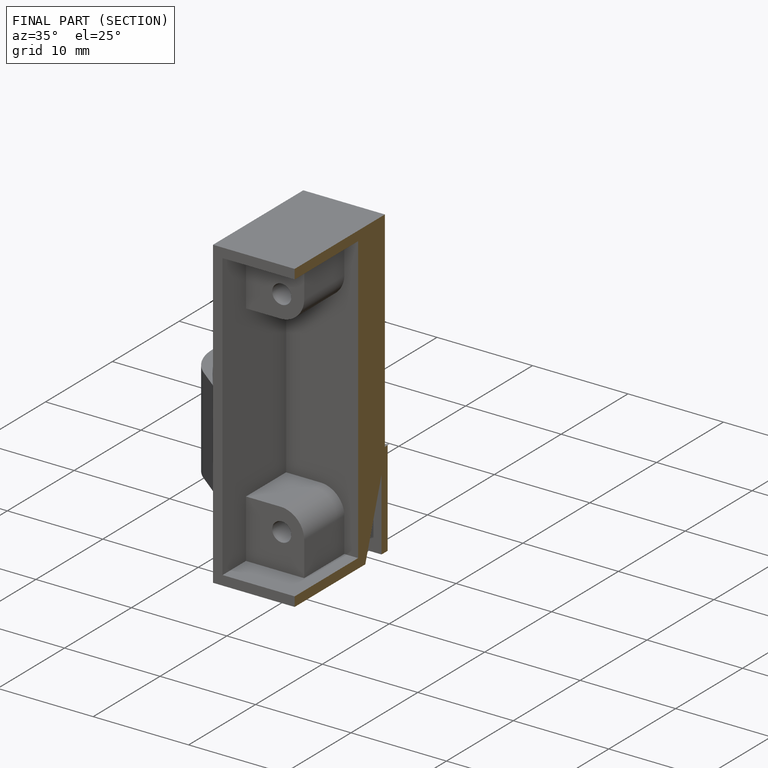
[diagram: finished part — half-section view (interior)]
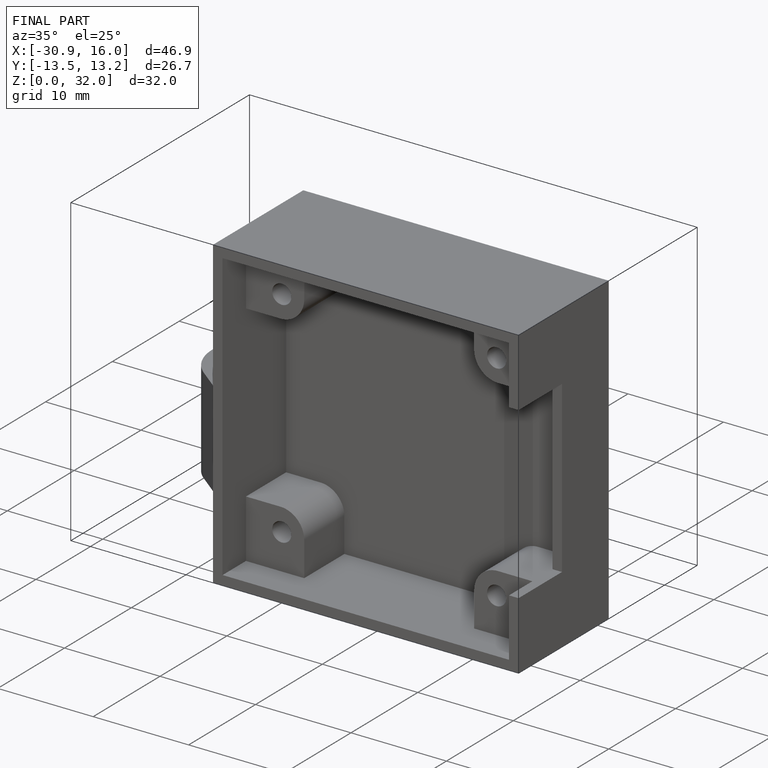
[diagram: finished part — iso view with bounding-box wireframe]
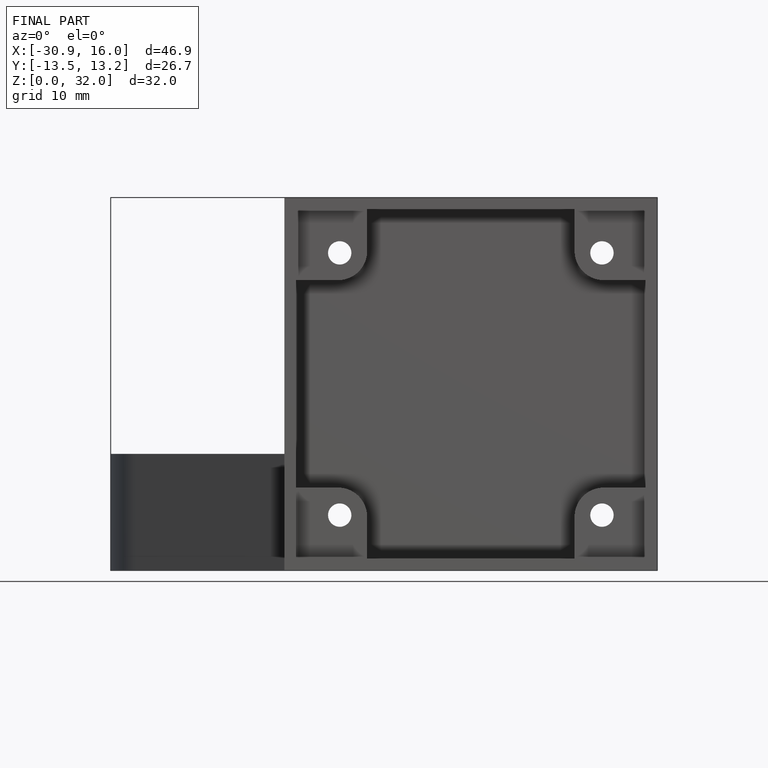
[diagram: finished part — front view with bounding-box wireframe]
